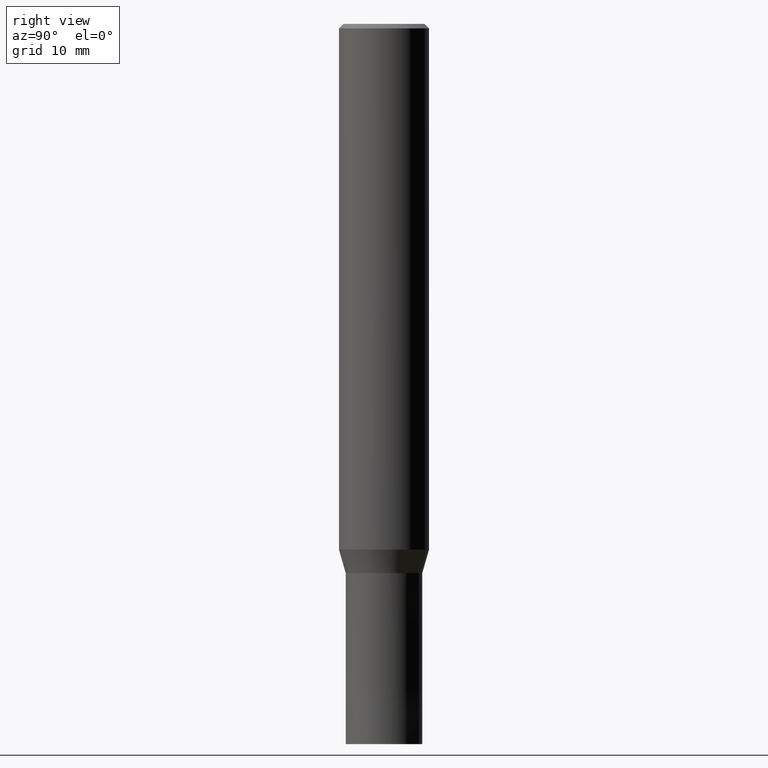
[diagram: clean part render]
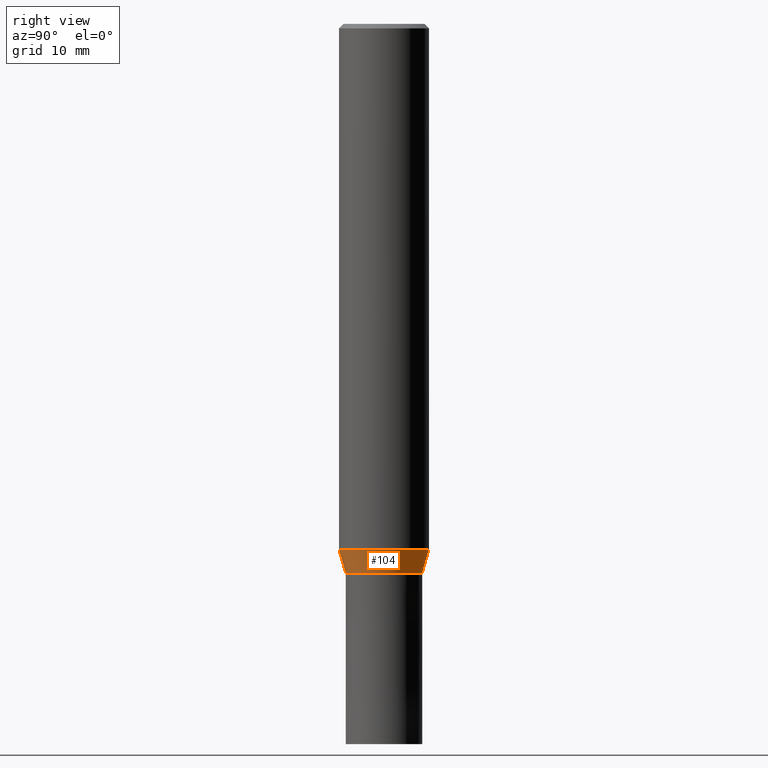
[diagram: same view with one face highlighted and labeled with its STEP entity id]
A machine part, right view. The second image highlights one B-rep face of the part: STEP entity #104.
In plain terms, the highlighted conical surface has half-angle 15.997 deg.
Its self-contained STEP definition (entity closure, byte-faithful):
#86=VERTEX_POINT('',#208);
#104=ADVANCED_FACE('',(#227),#228,.T.);
#108=VERTEX_POINT('',#232);
#126=EDGE_CURVE('',#174,#108,#251,.T.);
#142=EDGE_CURVE('',#174,#144,#269,.T.);
#144=VERTEX_POINT('',#271);
#174=VERTEX_POINT('',#308);
#178=EDGE_CURVE('',#144,#86,#313,.T.);
#184=EDGE_CURVE('',#86,#108,#319,.T.);
#208=CARTESIAN_POINT('',(5.20451577342741E-016,-4.24995,-61.0));
#227=FACE_OUTER_BOUND('',#360,.T.);
#228=CONICAL_SURFACE('',#361,4.62495,0.279208199033747);
#232=CARTESIAN_POINT('',(6.12297053879419E-016,-4.99995,-58.384));
#251=CIRCLE('',#391,4.99995);
#269=LINE('',#414,#415);
#271=CARTESIAN_POINT('',(0.0,4.24995,-61.0));
#308=CARTESIAN_POINT('',(0.0,4.99995,-58.384));
#313=CIRCLE('',#466,4.24995);
#319=LINE('',#473,#474);
#360=EDGE_LOOP('',(#504,#505,#506,#507));
#361=AXIS2_PLACEMENT_3D('',#508,#509,#510);
#391=AXIS2_PLACEMENT_3D('',#536,#537,#538);
#414=CARTESIAN_POINT('',(-5.6637431561108E-016,4.62495,-59.692));
#415=VECTOR('',#560,1.0);
#466=AXIS2_PLACEMENT_3D('',#620,#621,#622);
#473=CARTESIAN_POINT('',(5.6637431561108E-016,-4.62495,-59.692));
#474=VECTOR('',#623,1.0);
#504=ORIENTED_EDGE('',*,*,#142,.F.);
#505=ORIENTED_EDGE('',*,*,#126,.T.);
#506=ORIENTED_EDGE('',*,*,#184,.F.);
#507=ORIENTED_EDGE('',*,*,#178,.F.);
#508=CARTESIAN_POINT('',(0.0,0.0,-59.692));
#509=DIRECTION('',(-0.0,-0.0,1.0));
#510=DIRECTION('',(0.0,1.0,0.0));
#536=CARTESIAN_POINT('',(0.0,0.0,-58.384));
#537=DIRECTION('',(0.0,0.0,-1.0));
#538=DIRECTION('',(0.0,1.0,0.0));
#560=DIRECTION('',(3.37494895041124E-017,-0.275594597388538,-0.961273955691222));
#620=CARTESIAN_POINT('',(0.0,0.0,-61.0));
#621=DIRECTION('',(0.0,0.0,-1.0));
#622=DIRECTION('',(0.0,1.0,0.0));
#623=DIRECTION('',(3.37494895041124E-017,-0.275594597388538,0.961273955691222));